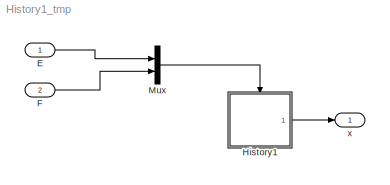
MODEL History1_tmp
KIND model
BLOCK [Inport] E
  IconDisplay = Port number
  SID = 2
BLOCK [Inport] F
  IconDisplay = Port number
  Port = 2
  SID = 3
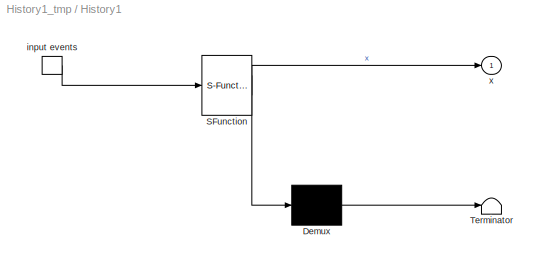
BLOCK [SubSystem] History1
  ErrorFcn = Stateflow.Translate.translate
  PermitHierarchicalResolution = ParametersOnly
  Ports = [0, 1, 0, 1]
  RequestExecContextInheritance = off
  SFBlockType = Chart
  SID = 1
  TreatAsAtomicUnit = on
  Variant = off
BLOCK [Demux] History1/ Demux 
  Outputs = 1
  Ports = [1, 1]
  SID = 1::10
BLOCK [S-Function] History1/ SFunction 
  EnableBusSupport = off
  FunctionName = sf_sfun
  PortCounts = [1 2]
  Ports = [1, 2]
  SFunctionDeploymentMode = off
  SID = 1::9
  Tag = Stateflow S-Function History1_tmp 1
BLOCK [Terminator] History1/ Terminator 
  SID = 1::11
BLOCK [TriggerPort] History1/ input events 
  Ports = [0, 1]
  SID = 1::1
  ShowOutputPort = on
  TriggerType = either
BLOCK [Outport] History1/x
  IconDisplay = Port number
  SID = 1::5
BLOCK [Mux] Mux
  DisplayOption = bar
  Inputs = 2
  Ports = [2, 1]
  SID = 4
BLOCK [Outport] x
  IconDisplay = Port number
  SID = 5
LINE E:1 -> Mux:1
LINE F:1 -> Mux:2
LINE History1/ Demux :1 -> History1/ Terminator :1
LINE History1/ SFunction :1 -> History1/ Demux :1
LINE History1/ SFunction :2 -> History1/x:1
LINE History1/ input events :1 -> History1/ SFunction :1
LINE History1:1 -> x:1
LINE Mux:1 -> History1:trigger
CHART History1 states=6 transitions=9
  STATE_LABEL 'A'
  STATE_LABEL 'A1/\\nen: x+=1;\\nex: x-=1;'
  STATE_LABEL 'A2/\\nen: x+=10;\\nex: x-=10;'
  STATE_LABEL 'B'
  STATE_LABEL 'B1/\\nen: x+=100;\\nex: x-=100;'
  STATE_LABEL 'B2/\\nen: x+=1000;\\nex: x-=1000;'
